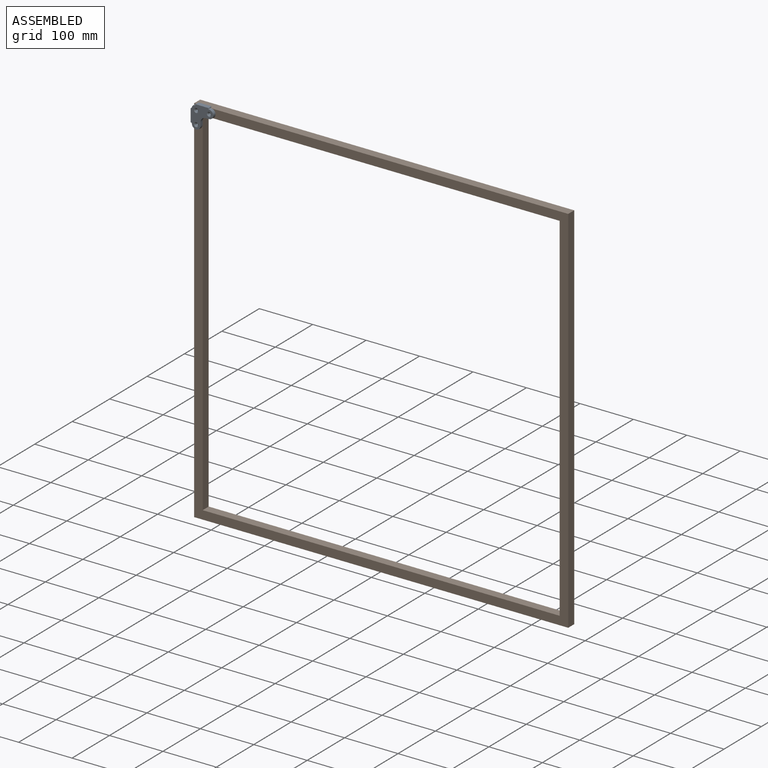
[diagram: assembled view]
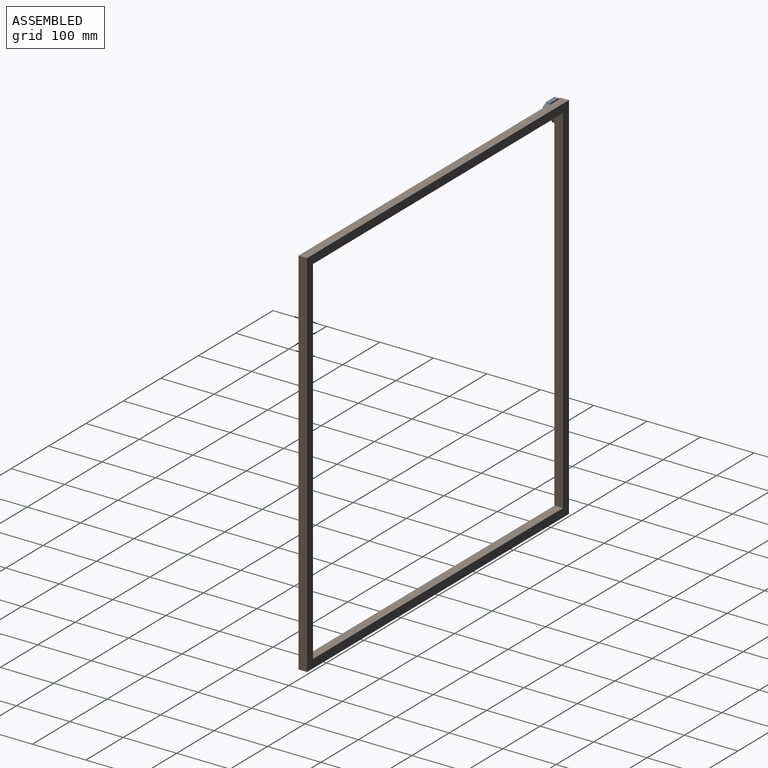
[diagram: assembled view, second angle]
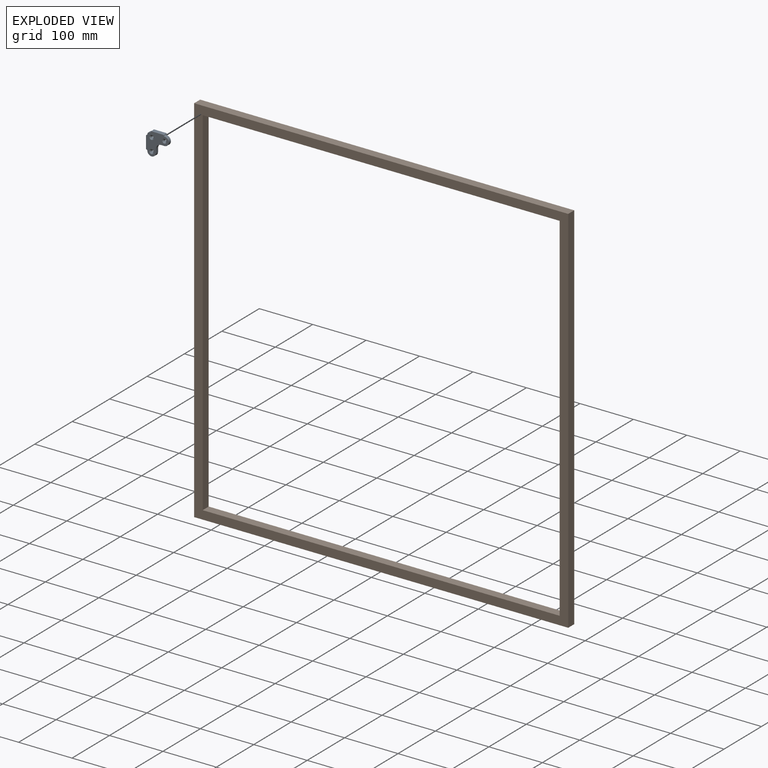
[diagram: exploded view]
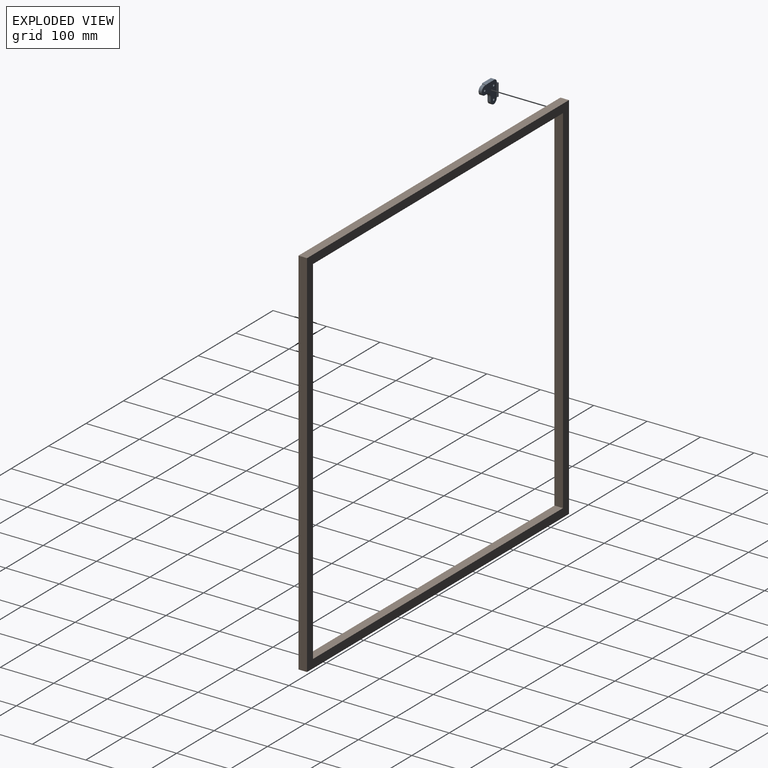
[diagram: exploded view, second angle]
ASSEMBLY  parts=2 mates=3
PART A: 28 faces, bbox 42.4x42.4x8 mm
  f0: plane 6x6mm, normal (1,0,0), area 36mm2, adj f2,f3,f5,f6
  f1: plane 6x6mm, normal (0,-1,0), area 36mm2, adj f2,f3,f4,f6
  f2: plane 41.2x41.2mm, normal (0,0,1), area 946.1mm2, adj f0,f1,f4,f5,f6,f7,f8,f11
  f3: plane 42.4x42.4mm, normal (0,0,-1), area 944.8mm2, adj f0,f1,f4,f5,f6,f7,f10,f13
  f4: cylinder r=8mm len=16mm, axis (0,0,-1), area 150.8mm2, adj f1,f2,f3,f15
  f5: cylinder r=8mm len=16mm, axis (0,0,-1), area 150.8mm2, adj f0,f2,f3,f16
  f6: cylinder r=10mm len=10mm, axis (0,0,1), area 94.2mm2, adj f0,f1,f2,f3
  f7: cylinder r=5mm len=6mm, axis (0,0,-1), area 47.1mm2, adj f2,f3,f14,f17
  f8: plane 22.2x2mm, normal (1,0,0), area 44.4mm2, adj f2,f9,f18,f19
  f9: plane 24.6x2.4mm, normal (0,0,1), area 57.8mm2, adj f8,f10,f18,f19
  f10: plane 22.2x8mm, normal (-1,0,0), area 177.6mm2, adj f3,f9,f18,f19
  f11: plane 22.2x2mm, normal (0,-1,0), area 44.4mm2, adj f2,f12,f20,f21
  f12: plane 24.6x2.4mm, normal (0,0,1), area 57.8mm2, adj f11,f13,f20,f21
  f13: plane 22.2x8mm, normal (0,1,0), area 177.6mm2, adj f3,f12,f20,f21
  f14: cylinder r=1.2mm len=6mm, axis (0,0,1), area 11.3mm2, adj f2,f3,f7,f20
  f15: cylinder r=1.2mm len=6mm, axis (0,0,-1), area 11.3mm2, adj f2,f3,f4,f21
  f16: cylinder r=1.2mm len=6mm, axis (0,0,-1), area 11.3mm2, adj f2,f3,f5,f18
  f17: cylinder r=1.2mm len=6mm, axis (0,0,1), area 11.3mm2, adj f2,f3,f7,f19
  f18: cylinder r=1.2mm len=8mm, axis (0,0,-1), area 18.8mm2, adj f2,f3,f8,f9,f10,f16
  f19: cylinder r=1.2mm len=8mm, axis (0,0,-1), area 18.8mm2, adj f2,f3,f8,f9,f10,f17
  f20: cylinder r=1.2mm len=8mm, axis (0,0,-1), area 18.8mm2, adj f2,f3,f11,f12,f13,f14
  f21: cylinder r=1.2mm len=8mm, axis (0,0,1), area 18.8mm2, adj f2,f3,f11,f12,f13,f15
  f22: cylinder r=2.1mm len=4.2mm, axis (0,0,-1), area 52.8mm2, adj f2,f23
  f23: cone r=2.1mm half-angle=45deg, axis (0,0,-1), area 55.1mm2, adj f3,f22
  f24: cylinder r=2.1mm len=4.2mm, axis (0,0,-1), area 52.8mm2, adj f2,f25
  f25: cone r=2.1mm half-angle=45deg, axis (0,0,-1), area 55.1mm2, adj f3,f24
  f26: cylinder r=2.1mm len=4.2mm, axis (0,0,-1), area 52.8mm2, adj f2,f27
  f27: cone r=2.1mm half-angle=45deg, axis (0,0,-1), area 55.1mm2, adj f3,f26
PART B: 10 faces, bbox 700x16x700 mm
  f0: plane 700x16mm, normal (-1,0,0), area 11200mm2, adj f1,f7,f8,f9
  f1: plane 700x16mm, normal (0,0,-1), area 11200mm2, adj f0,f2,f8,f9
  f2: plane 700x16mm, normal (1,0,0), area 11200mm2, adj f1,f7,f8,f9
  f3: plane 668x16mm, normal (0,0,1), area 10688mm2, adj f4,f6,f8,f9
  f4: plane 668x16mm, normal (1,0,0), area 10688mm2, adj f3,f5,f8,f9
  f5: plane 668x16mm, normal (0,0,-1), area 10688mm2, adj f4,f6,f8,f9
  f6: plane 668x16mm, normal (-1,0,0), area 10688mm2, adj f3,f5,f8,f9
  f7: plane 700x16mm, normal (0,0,1), area 11200mm2, adj f0,f2,f8,f9
  f8: plane 700x700mm, normal (0,-1,0), area 43776mm2, adj f0,f1,f2,f3,f4,f5,f6,f7
  f9: plane 700x700mm, normal (0,1,0), area 43776mm2, adj f0,f1,f2,f3,f4,f5,f6,f7
PLACE A rot(axis=(-0.58,0.58,0.58),120deg) t=(-284.66,-8.82,295.16)mm
PLACE B t=(20.34,13.18,-9.84)mm fixed
MATE planar A.f11 <-> B.f0  axis (1,0,0) through (-329.66,-1.82,321.66)mm
MATE planar A.f8 <-> B.f7  axis (0,0,-1) through (-311.16,-1.82,340.16)mm
MATE planar A.f2 <-> B.f8  axis (0,1,0) through (-314.5,-2.82,325)mm
